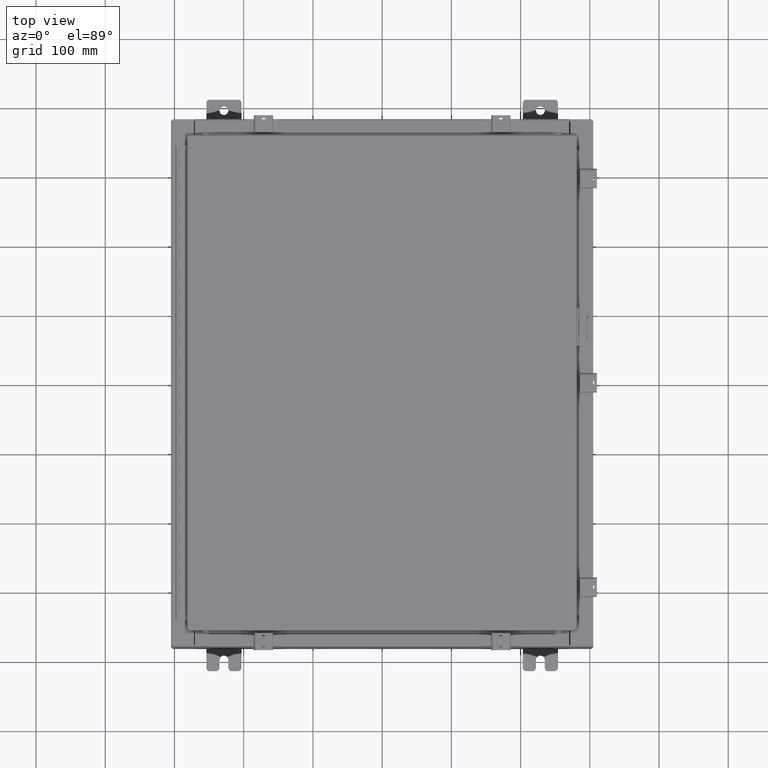
[diagram: clean part render]
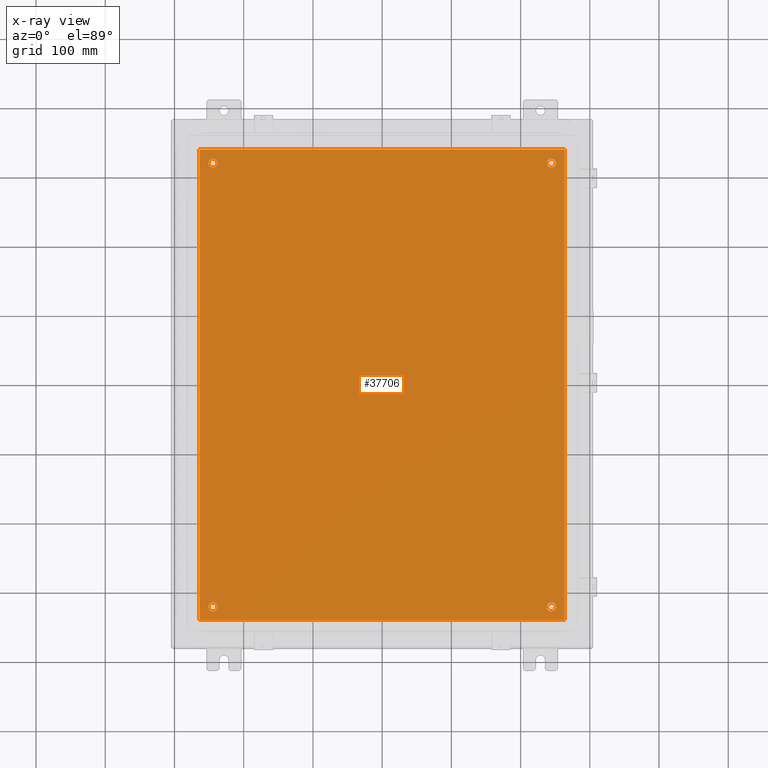
[diagram: x-ray — body ghosted, one internal face saturated and labeled with its STEP entity id]
A machine part, top view, then the same camera in x-ray: the body is ghosted and one INTERNAL B-rep face — a face not visible from any outside direction — is saturated and labeled: STEP entity #37706.
In plain terms, the highlighted planar face has unit normal (0, 0, -1).
Its self-contained STEP definition (entity closure, byte-faithful):
#845 = AXIS2_PLACEMENT_3D ( 'NONE', #13212, #33754, #16144 ) ;
#1721 = ORIENTED_EDGE ( 'NONE', *, *, #34751, .F. ) ;
#1745 = DIRECTION ( 'NONE',  ( -1.000000000000000000, 0.0000000000000000000, 0.0000000000000000000 ) ) ;
#1770 = DIRECTION ( 'NONE',  ( -1.000000000000000000, 0.0000000000000000000, 0.0000000000000000000 ) ) ;
#2355 = EDGE_CURVE ( 'NONE', #10369, #19587, #8692, .T. ) ;
#2824 = CARTESIAN_POINT ( 'NONE',  ( -10.38300000000000100, 13.38299999999999700, -0.1040000000000019500 ) ) ;
#2851 = CIRCLE ( 'NONE', #32137, 0.2500000000000008900 ) ;
#6184 = CARTESIAN_POINT ( 'NONE',  ( 10.38300000000000100, -13.38299999999999700, -0.1040000000000008600 ) ) ;
#6193 = EDGE_LOOP ( 'NONE', ( #19295, #32714 ) ) ;
#6502 = DIRECTION ( 'NONE',  ( -0.0000000000000000000, -0.0000000000000000000, 1.000000000000000000 ) ) ;
#7254 = VECTOR ( 'NONE', #26907, 39.37007874015748100 ) ;
#7640 = VERTEX_POINT ( 'NONE', #20218 ) ;
#7695 = EDGE_CURVE ( 'NONE', #24057, #37026, #33341, .T. ) ;
#7922 = CARTESIAN_POINT ( 'NONE',  ( 9.375000000000007100, -12.62500000000000000, -0.1040000000000000400 ) ) ;
#8599 = VERTEX_POINT ( 'NONE', #27702 ) ;
#8692 = CIRCLE ( 'NONE', #845, 0.2500000000000008900 ) ;
#8939 = FACE_OUTER_BOUND ( 'NONE', #22332, .T. ) ;
#9127 = CIRCLE ( 'NONE', #15733, 0.2500000000000008900 ) ;
#9668 = CARTESIAN_POINT ( 'NONE',  ( 9.875000000000007100, -12.62500000000000000, -0.1040000000000000400 ) ) ;
#9676 = AXIS2_PLACEMENT_3D ( 'NONE', #36870, #19283, #1770 ) ;
#10302 = DIRECTION ( 'NONE',  ( -0.0000000000000000000, -0.0000000000000000000, 1.000000000000000000 ) ) ;
#10369 = VERTEX_POINT ( 'NONE', #15241 ) ;
#11621 = DIRECTION ( 'NONE',  ( 0.0000000000000000000, -1.000000000000000000, 0.0000000000000000000 ) ) ;
#12193 = EDGE_CURVE ( 'NONE', #37026, #30820, #15052, .T. ) ;
#12559 = LINE ( 'NONE', #6184, #35067 ) ;
#12925 = DIRECTION ( 'NONE',  ( 0.0000000000000000000, 0.0000000000000000000, -1.000000000000000000 ) ) ;
#13212 = CARTESIAN_POINT ( 'NONE',  ( -9.625000000000007100, -12.62500000000000000, -0.1040000000000000400 ) ) ;
#13448 = CARTESIAN_POINT ( 'NONE',  ( 9.625000000000007100, 12.62500000000000000, -0.1040000000000000400 ) ) ;
#13934 = VERTEX_POINT ( 'NONE', #32268 ) ;
#14185 = EDGE_CURVE ( 'NONE', #21318, #23566, #26426, .T. ) ;
#14482 = DIRECTION ( 'NONE',  ( -0.0000000000000000000, -0.0000000000000000000, 1.000000000000000000 ) ) ;
#15052 = LINE ( 'NONE', #35651, #7254 ) ;
#15241 = CARTESIAN_POINT ( 'NONE',  ( -9.875000000000007100, -12.62500000000000000, -0.1040000000000000400 ) ) ;
#15557 = VERTEX_POINT ( 'NONE', #9668 ) ;
#15733 = AXIS2_PLACEMENT_3D ( 'NONE', #15791, #36327, #18754 ) ;
#15791 = CARTESIAN_POINT ( 'NONE',  ( -9.625000000000007100, -12.62500000000000000, -0.1040000000000000400 ) ) ;
#16144 = DIRECTION ( 'NONE',  ( -1.000000000000000000, 0.0000000000000000000, 0.0000000000000000000 ) ) ;
#16228 = EDGE_LOOP ( 'NONE', ( #25381, #35519 ) ) ;
#16391 = DIRECTION ( 'NONE',  ( -1.000000000000000000, 0.0000000000000000000, 0.0000000000000000000 ) ) ;
#16686 = FACE_BOUND ( 'NONE', #19204, .T. ) ;
#17484 = CARTESIAN_POINT ( 'NONE',  ( 10.38300000000000100, -13.38299999999999700, -0.1040000000000008600 ) ) ;
#17635 = FACE_BOUND ( 'NONE', #6193, .T. ) ;
#17942 = EDGE_CURVE ( 'NONE', #23566, #21318, #36831, .T. ) ;
#18754 = DIRECTION ( 'NONE',  ( -1.000000000000000000, 0.0000000000000000000, 0.0000000000000000000 ) ) ;
#18781 = VECTOR ( 'NONE', #23141, 39.37007874015748100 ) ;
#19204 = EDGE_LOOP ( 'NONE', ( #22226, #37373 ) ) ;
#19257 = DIRECTION ( 'NONE',  ( -0.0000000000000000000, -0.0000000000000000000, 1.000000000000000000 ) ) ;
#19283 = DIRECTION ( 'NONE',  ( -0.0000000000000000000, -0.0000000000000000000, 1.000000000000000000 ) ) ;
#19295 = ORIENTED_EDGE ( 'NONE', *, *, #27869, .T. ) ;
#19587 = VERTEX_POINT ( 'NONE', #35755 ) ;
#20218 = CARTESIAN_POINT ( 'NONE',  ( -9.375000000000007100, 12.62500000000000000, -0.1040000000000000400 ) ) ;
#20455 = VERTEX_POINT ( 'NONE', #7922 ) ;
#20796 = CIRCLE ( 'NONE', #36904, 0.2499999999999998100 ) ;
#21318 = VERTEX_POINT ( 'NONE', #35319 ) ;
#21583 = AXIS2_PLACEMENT_3D ( 'NONE', #24081, #6502, #27012 ) ;
#22226 = ORIENTED_EDGE ( 'NONE', *, *, #27709, .T. ) ;
#22297 = ORIENTED_EDGE ( 'NONE', *, *, #12193, .F. ) ;
#22332 = EDGE_LOOP ( 'NONE', ( #22297, #23685, #1721, #24649 ) ) ;
#22409 = CARTESIAN_POINT ( 'NONE',  ( 9.375000000000007100, 12.62500000000000000, -0.1040000000000000400 ) ) ;
#22723 = CIRCLE ( 'NONE', #33795, 0.2500000000000008900 ) ;
#23141 = DIRECTION ( 'NONE',  ( -1.000000000000000000, -0.0000000000000000000, -0.0000000000000000000 ) ) ;
#23566 = VERTEX_POINT ( 'NONE', #22409 ) ;
#23685 = ORIENTED_EDGE ( 'NONE', *, *, #7695, .F. ) ;
#24057 = VERTEX_POINT ( 'NONE', #36992 ) ;
#24081 = CARTESIAN_POINT ( 'NONE',  ( 9.625000000000007100, -12.62500000000000000, -0.1040000000000000400 ) ) ;
#24526 = FACE_BOUND ( 'NONE', #16228, .T. ) ;
#24534 = EDGE_CURVE ( 'NONE', #8599, #7640, #22723, .T. ) ;
#24649 = ORIENTED_EDGE ( 'NONE', *, *, #26035, .F. ) ;
#25232 = ORIENTED_EDGE ( 'NONE', *, *, #2355, .T. ) ;
#25381 = ORIENTED_EDGE ( 'NONE', *, *, #14185, .T. ) ;
#25535 = VECTOR ( 'NONE', #11621, 39.37007874015748100 ) ;
#25958 = ORIENTED_EDGE ( 'NONE', *, *, #35343, .T. ) ;
#26035 = EDGE_CURVE ( 'NONE', #30820, #13934, #12559, .T. ) ;
#26426 = CIRCLE ( 'NONE', #9676, 0.2499999999999998100 ) ;
#26907 = DIRECTION ( 'NONE',  ( 1.000000000000000000, -0.0000000000000000000, -0.0000000000000000000 ) ) ;
#27012 = DIRECTION ( 'NONE',  ( -1.000000000000000000, 0.0000000000000000000, 0.0000000000000000000 ) ) ;
#27702 = CARTESIAN_POINT ( 'NONE',  ( -9.875000000000007100, 12.62500000000000000, -0.1040000000000000400 ) ) ;
#27709 = EDGE_CURVE ( 'NONE', #7640, #8599, #2851, .T. ) ;
#27838 = CARTESIAN_POINT ( 'NONE',  ( -9.625000000000007100, 12.62500000000000000, -0.1040000000000000400 ) ) ;
#27869 = EDGE_CURVE ( 'NONE', #15557, #20455, #35399, .T. ) ;
#28524 = EDGE_LOOP ( 'NONE', ( #25958, #25232 ) ) ;
#30045 = CARTESIAN_POINT ( 'NONE',  ( -10.38300000000000100, -13.38299999999999900, -0.1040000000000008600 ) ) ;
#30511 = CARTESIAN_POINT ( 'NONE',  ( 0.0000000000000000000, 0.0000000000000000000, -0.1040000000000000400 ) ) ;
#30810 = DIRECTION ( 'NONE',  ( -1.000000000000000000, 0.0000000000000000000, 0.0000000000000000000 ) ) ;
#30820 = VERTEX_POINT ( 'NONE', #17484 ) ;
#31534 = EDGE_CURVE ( 'NONE', #20455, #15557, #20796, .T. ) ;
#32048 = CARTESIAN_POINT ( 'NONE',  ( -9.625000000000007100, 12.62500000000000000, -0.1040000000000000400 ) ) ;
#32137 = AXIS2_PLACEMENT_3D ( 'NONE', #32048, #14482, #34989 ) ;
#32268 = CARTESIAN_POINT ( 'NONE',  ( 10.38300000000000100, 13.38299999999999700, -0.1040000000000008600 ) ) ;
#32334 = FACE_BOUND ( 'NONE', #28524, .T. ) ;
#32470 = DIRECTION ( 'NONE',  ( 0.0000000000000000000, 1.000000000000000000, 0.0000000000000000000 ) ) ;
#32714 = ORIENTED_EDGE ( 'NONE', *, *, #31534, .T. ) ;
#33339 = PLANE ( 'NONE',  #34737 ) ;
#33341 = LINE ( 'NONE', #2824, #25535 ) ;
#33460 = DIRECTION ( 'NONE',  ( -1.000000000000000000, 0.0000000000000000000, -0.0000000000000000000 ) ) ;
#33754 = DIRECTION ( 'NONE',  ( -0.0000000000000000000, -0.0000000000000000000, 1.000000000000000000 ) ) ;
#33795 = AXIS2_PLACEMENT_3D ( 'NONE', #27838, #10302, #30810 ) ;
#33988 = DIRECTION ( 'NONE',  ( -0.0000000000000000000, -0.0000000000000000000, 1.000000000000000000 ) ) ;
#34374 = LINE ( 'NONE', #34817, #18781 ) ;
#34737 = AXIS2_PLACEMENT_3D ( 'NONE', #30511, #12925, #33460 ) ;
#34751 = EDGE_CURVE ( 'NONE', #13934, #24057, #34374, .T. ) ;
#34817 = CARTESIAN_POINT ( 'NONE',  ( 10.50000000000000400, 13.38299999999999900, -0.1040000000000008600 ) ) ;
#34989 = DIRECTION ( 'NONE',  ( -1.000000000000000000, 0.0000000000000000000, 0.0000000000000000000 ) ) ;
#35067 = VECTOR ( 'NONE', #32470, 39.37007874015748100 ) ;
#35319 = CARTESIAN_POINT ( 'NONE',  ( 9.875000000000007100, 12.62500000000000000, -0.1040000000000000400 ) ) ;
#35343 = EDGE_CURVE ( 'NONE', #19587, #10369, #9127, .T. ) ;
#35399 = CIRCLE ( 'NONE', #21583, 0.2499999999999998100 ) ;
#35519 = ORIENTED_EDGE ( 'NONE', *, *, #17942, .T. ) ;
#35651 = CARTESIAN_POINT ( 'NONE',  ( -10.50000000000000200, -13.38299999999999900, -0.1040000000000008600 ) ) ;
#35755 = CARTESIAN_POINT ( 'NONE',  ( -9.375000000000007100, -12.62500000000000000, -0.1040000000000000400 ) ) ;
#36327 = DIRECTION ( 'NONE',  ( -0.0000000000000000000, -0.0000000000000000000, 1.000000000000000000 ) ) ;
#36831 = CIRCLE ( 'NONE', #37281, 0.2499999999999998100 ) ;
#36837 = CARTESIAN_POINT ( 'NONE',  ( 9.625000000000007100, -12.62500000000000000, -0.1040000000000000400 ) ) ;
#36870 = CARTESIAN_POINT ( 'NONE',  ( 9.625000000000007100, 12.62500000000000000, -0.1040000000000000400 ) ) ;
#36904 = AXIS2_PLACEMENT_3D ( 'NONE', #36837, #19257, #1745 ) ;
#36992 = CARTESIAN_POINT ( 'NONE',  ( -10.38300000000000100, 13.38299999999999700, -0.1040000000000019500 ) ) ;
#37026 = VERTEX_POINT ( 'NONE', #30045 ) ;
#37281 = AXIS2_PLACEMENT_3D ( 'NONE', #13448, #33988, #16391 ) ;
#37373 = ORIENTED_EDGE ( 'NONE', *, *, #24534, .T. ) ;
#37706 = ADVANCED_FACE ( 'NONE', ( #32334, #17635, #24526, #16686, #8939 ), #33339, .T. ) ;